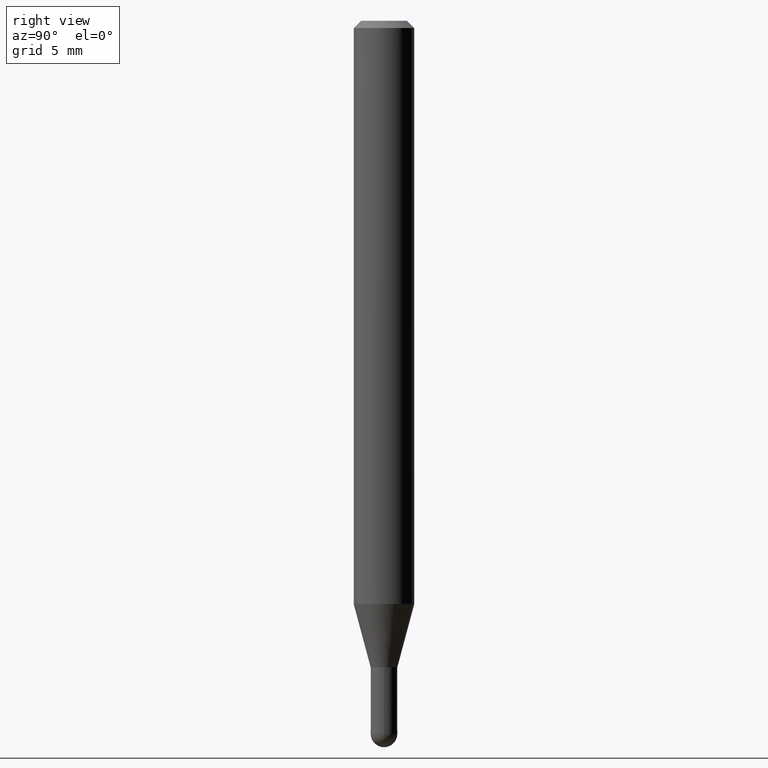
[diagram: clean part render]
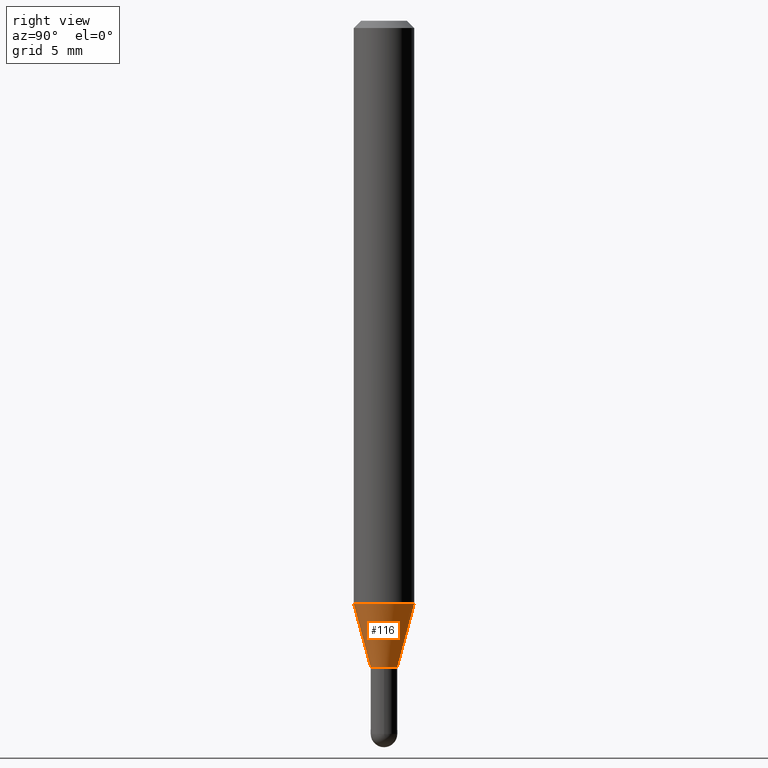
[diagram: same view with one face highlighted and labeled with its STEP entity id]
A machine part, right view. The second image highlights one B-rep face of the part: STEP entity #116.
In plain terms, the highlighted conical surface has half-angle 15 deg.
Its self-contained STEP definition (entity closure, byte-faithful):
#1 = DIRECTION ( 'NONE',  ( -2.445481383962467149E-29, 3.491463326750125322E-15, 1.000000000000000000 ) ) ;
#4 = ORIENTED_EDGE ( 'NONE', *, *, #189, .T. ) ;
#7 = VERTEX_POINT ( 'NONE', #301 ) ;
#10 = ORIENTED_EDGE ( 'NONE', *, *, #253, .F. ) ;
#33 = CARTESIAN_POINT ( 'NONE',  ( 1.953992523340595996E-16, 0.02749999999999525740, -1.335000000000000409 ) ) ;
#35 = CARTESIAN_POINT ( 'NONE',  ( 2.945284520502991775E-29, -4.205042392724609361E-15, -1.204378221735093346 ) ) ;
#60 = VERTEX_POINT ( 'NONE', #411 ) ;
#73 = AXIS2_PLACEMENT_3D ( 'NONE', #311, #108, #302 ) ;
#75 = VECTOR ( 'NONE', #102, 39.37007874015748854 ) ;
#82 = ORIENTED_EDGE ( 'NONE', *, *, #306, .T. ) ;
#85 = AXIS2_PLACEMENT_3D ( 'NONE', #122, #1, #389 ) ;
#102 = DIRECTION ( 'NONE',  ( 1.839019923739647647E-15, 0.2588190451025316197, 0.9659258262890653146 ) ) ;
#108 = DIRECTION ( 'NONE',  ( -2.445481383962467149E-29, 3.491463326750125322E-15, 1.000000000000000000 ) ) ;
#116 = ADVANCED_FACE ( 'NONE', ( #144 ), #455, .T. ) ;
#122 = CARTESIAN_POINT ( 'NONE',  ( 3.264717647589894801E-29, -4.661103541211418295E-15, -1.335000000000000409 ) ) ;
#126 = DIRECTION ( 'NONE',  ( -1.807323732225377077E-15, -0.2588190451025249028, 0.9659258262890670910 ) ) ;
#134 = CIRCLE ( 'NONE', #437, 0.06250000000000000000 ) ;
#144 = FACE_OUTER_BOUND ( 'NONE', #436, .T. ) ;
#151 = VERTEX_POINT ( 'NONE', #266 ) ;
#189 = EDGE_CURVE ( 'NONE', #317, #7, #351, .T. ) ;
#253 = EDGE_CURVE ( 'NONE', #60, #7, #134, .T. ) ;
#266 = CARTESIAN_POINT ( 'NONE',  ( -1.920314736363391136E-16, -0.02750000000000457981, -1.335000000000000409 ) ) ;
#283 = CARTESIAN_POINT ( 'NONE',  ( 3.197442310920758867E-16, 0.02749999999999525740, -1.335000000000000409 ) ) ;
#288 = VECTOR ( 'NONE', #126, 39.37007874015748143 ) ;
#301 = CARTESIAN_POINT ( 'NONE',  ( 4.440892098500917054E-16, 0.06249999999999575340, -1.204378221735093790 ) ) ;
#302 = DIRECTION ( 'NONE',  ( -6.982962677686265922E-15, -1.000000000000000000, 0.000000000000000000 ) ) ;
#306 = EDGE_CURVE ( 'NONE', #151, #317, #313, .T. ) ;
#311 = CARTESIAN_POINT ( 'NONE',  ( 3.264717647589894801E-29, -4.661103541211418295E-15, -1.335000000000000409 ) ) ;
#312 = ORIENTED_EDGE ( 'NONE', *, *, #447, .F. ) ;
#313 = CIRCLE ( 'NONE', #85, 0.02749999999999992034 ) ;
#317 = VERTEX_POINT ( 'NONE', #283 ) ;
#318 = DIRECTION ( 'NONE',  ( -2.445481383962467149E-29, 3.491463326750125322E-15, 1.000000000000000000 ) ) ;
#331 = LINE ( 'NONE', #486, #288 ) ;
#351 = LINE ( 'NONE', #33, #75 ) ;
#389 = DIRECTION ( 'NONE',  ( -6.982962677686265922E-15, -1.000000000000000000, 0.000000000000000000 ) ) ;
#396 = DIRECTION ( 'NONE',  ( -6.982962677686265922E-15, -1.000000000000000000, 4.370956789862821150E-15 ) ) ;
#411 = CARTESIAN_POINT ( 'NONE',  ( -4.364351673553623336E-16, -0.06250000000000421885, -1.204378221735093124 ) ) ;
#436 = EDGE_LOOP ( 'NONE', ( #82, #4, #10, #312 ) ) ;
#437 = AXIS2_PLACEMENT_3D ( 'NONE', #35, #318, #396 ) ;
#447 = EDGE_CURVE ( 'NONE', #151, #60, #331, .T. ) ;
#455 = CONICAL_SURFACE ( 'NONE', #73, 0.02749999999999992034, 0.2617993877991572349 ) ;
#486 = CARTESIAN_POINT ( 'NONE',  ( -1.920314736363391136E-16, -0.02750000000000457981, -1.335000000000000409 ) ) ;